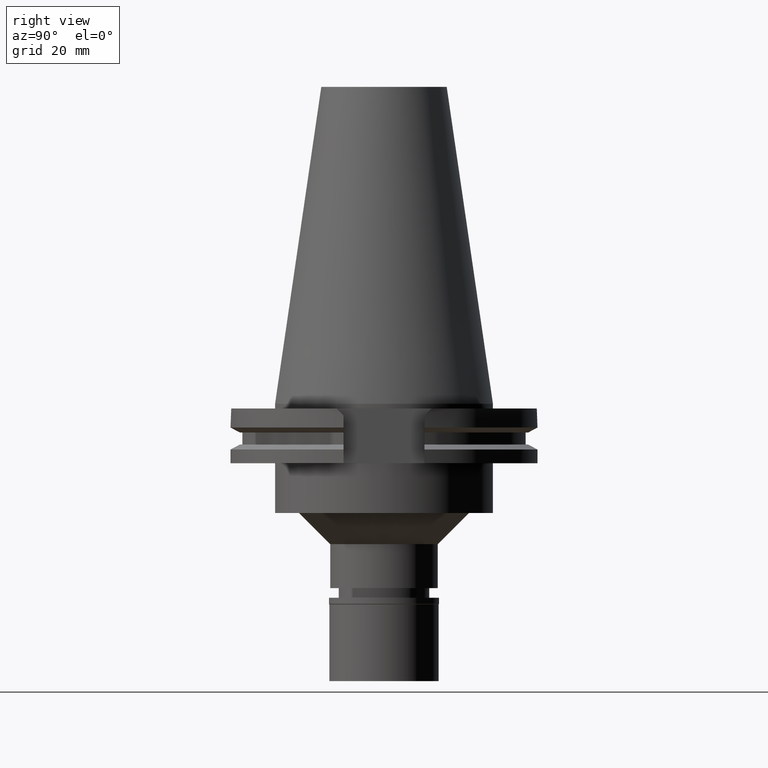
[diagram: clean part render]
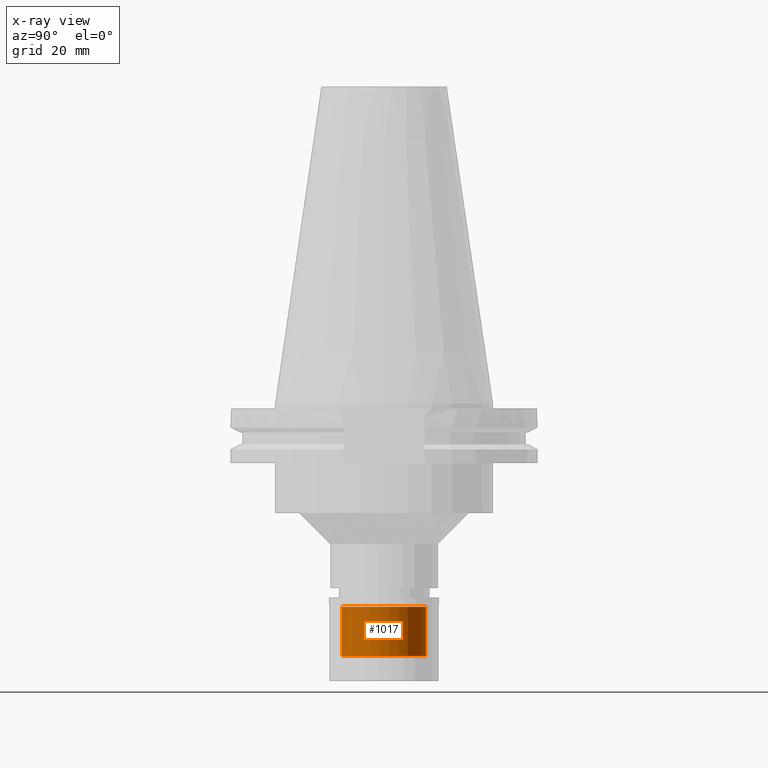
[diagram: x-ray — body ghosted, one internal face saturated and labeled with its STEP entity id]
A machine part, right view, then the same camera in x-ray: the body is ghosted and one INTERNAL B-rep face — a face not visible from any outside direction — is saturated and labeled: STEP entity #1017.
In plain terms, the highlighted cylindrical surface (partial cylindrical patch) has radius 13.5 mm, axis along (0, 0, -1).
Its self-contained STEP definition (entity closure, byte-faithful):
#49 = EDGE_CURVE ( 'NONE', #1554, #241, #3059, .T. ) ;
#190 = DIRECTION ( 'NONE',  ( 0.0000000000000000000, 0.0000000000000000000, -1.000000000000000000 ) ) ;
#229 = ORIENTED_EDGE ( 'NONE', *, *, #2448, .T. ) ;
#241 = VERTEX_POINT ( 'NONE', #371 ) ;
#265 = VERTEX_POINT ( 'NONE', #893 ) ;
#309 = AXIS2_PLACEMENT_3D ( 'NONE', #1074, #585, #1579 ) ;
#371 = CARTESIAN_POINT ( 'NONE',  ( 0.0000000000000000000, 13.50000000000000000, -2.899999999999999911 ) ) ;
#377 = CYLINDRICAL_SURFACE ( 'NONE', #3153, 13.50000000000000000 ) ;
#387 = CARTESIAN_POINT ( 'NONE',  ( 0.0000000000000000000, 13.50000000000000000, -18.70000000000000284 ) ) ;
#585 = DIRECTION ( 'NONE',  ( 0.0000000000000000000, 0.0000000000000000000, -1.000000000000000000 ) ) ;
#627 = DIRECTION ( 'NONE',  ( 0.0000000000000000000, -1.000000000000000000, 0.0000000000000000000 ) ) ;
#693 = ORIENTED_EDGE ( 'NONE', *, *, #49, .F. ) ;
#893 = CARTESIAN_POINT ( 'NONE',  ( 0.0000000000000000000, -13.50000000000000000, -2.899999999999999911 ) ) ;
#1017 = ADVANCED_FACE ( 'NONE', ( #1418 ), #377, .F. ) ;
#1074 = CARTESIAN_POINT ( 'NONE',  ( 0.0000000000000000000, 0.0000000000000000000, -18.70000000000000284 ) ) ;
#1130 = AXIS2_PLACEMENT_3D ( 'NONE', #2772, #2239, #1739 ) ;
#1186 = CIRCLE ( 'NONE', #1130, 13.50000000000000000 ) ;
#1268 = VECTOR ( 'NONE', #2815, 1000.000000000000000 ) ;
#1418 = FACE_OUTER_BOUND ( 'NONE', #1629, .T. ) ;
#1481 = CARTESIAN_POINT ( 'NONE',  ( 0.0000000000000000000, -13.50000000000000000, -18.70000000000000284 ) ) ;
#1521 = CARTESIAN_POINT ( 'NONE',  ( 0.0000000000000000000, 13.50000000000000000, -18.70000000000000284 ) ) ;
#1554 = VERTEX_POINT ( 'NONE', #387 ) ;
#1579 = DIRECTION ( 'NONE',  ( 0.0000000000000000000, 1.000000000000000000, 0.0000000000000000000 ) ) ;
#1584 = ORIENTED_EDGE ( 'NONE', *, *, #2713, .T. ) ;
#1629 = EDGE_LOOP ( 'NONE', ( #2677, #1584, #229, #693 ) ) ;
#1656 = CARTESIAN_POINT ( 'NONE',  ( 0.0000000000000000000, 0.0000000000000000000, 0.0000000000000000000 ) ) ;
#1718 = DIRECTION ( 'NONE',  ( 0.0000000000000000000, 0.0000000000000000000, 1.000000000000000000 ) ) ;
#1739 = DIRECTION ( 'NONE',  ( 0.0000000000000000000, -1.000000000000000000, 0.0000000000000000000 ) ) ;
#2059 = EDGE_CURVE ( 'NONE', #1554, #2816, #2623, .T. ) ;
#2068 = LINE ( 'NONE', #2215, #2374 ) ;
#2215 = CARTESIAN_POINT ( 'NONE',  ( 0.0000000000000000000, -13.50000000000000000, -18.70000000000000284 ) ) ;
#2239 = DIRECTION ( 'NONE',  ( 0.0000000000000000000, 0.0000000000000000000, 1.000000000000000000 ) ) ;
#2374 = VECTOR ( 'NONE', #1718, 1000.000000000000000 ) ;
#2448 = EDGE_CURVE ( 'NONE', #265, #241, #1186, .T. ) ;
#2623 = CIRCLE ( 'NONE', #309, 13.50000000000000000 ) ;
#2677 = ORIENTED_EDGE ( 'NONE', *, *, #2059, .T. ) ;
#2713 = EDGE_CURVE ( 'NONE', #2816, #265, #2068, .T. ) ;
#2772 = CARTESIAN_POINT ( 'NONE',  ( 0.0000000000000000000, 0.0000000000000000000, -2.899999999999999911 ) ) ;
#2815 = DIRECTION ( 'NONE',  ( 0.0000000000000000000, 0.0000000000000000000, 1.000000000000000000 ) ) ;
#2816 = VERTEX_POINT ( 'NONE', #1481 ) ;
#3059 = LINE ( 'NONE', #1521, #1268 ) ;
#3153 = AXIS2_PLACEMENT_3D ( 'NONE', #1656, #190, #627 ) ;